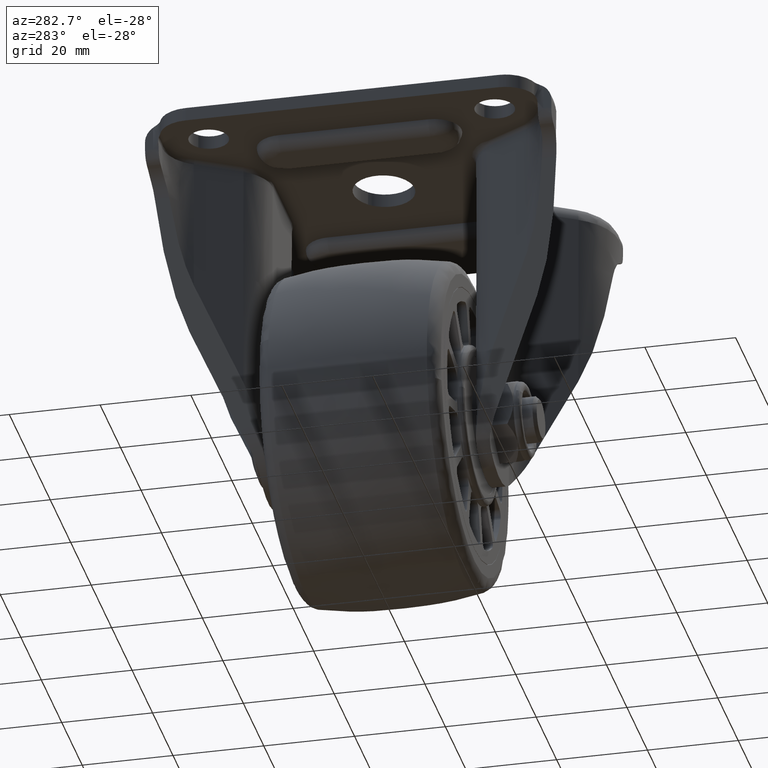
[diagram: clean part render]
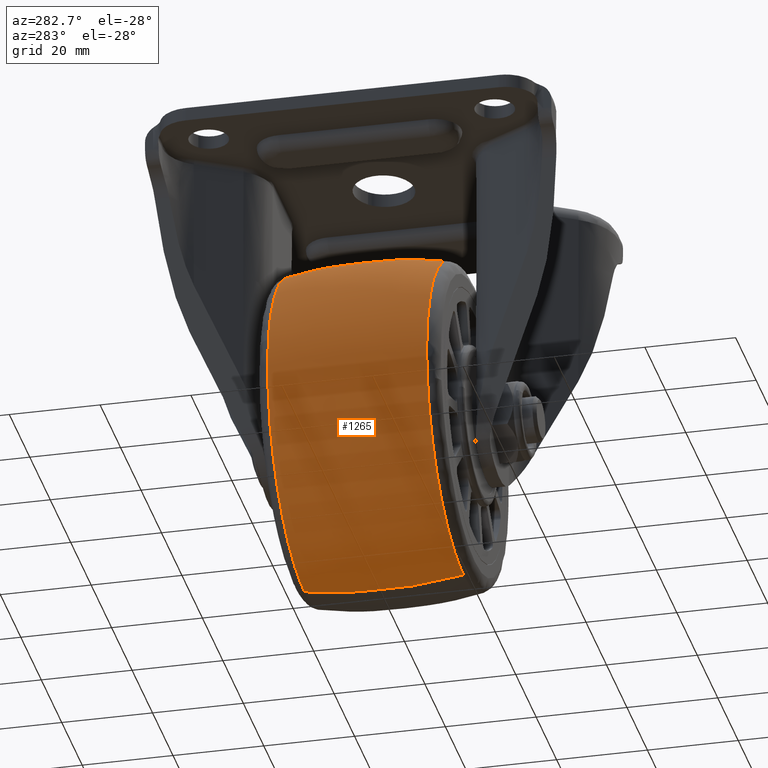
[diagram: same view with one face highlighted and labeled with its STEP entity id]
A machine part, auxiliary view. The second image highlights one B-rep face of the part: STEP entity #1265.
In plain terms, the highlighted face is a freeform B-spline surface patch.
Its self-contained STEP definition (entity closure, byte-faithful):
#1036=CARTESIAN_POINT('',(0.0,-17.525752693696369,-35.952262505840856));
#1037=VERTEX_POINT('',#1036);
#1038=CARTESIAN_POINT('',(0.0,17.525756449657170,-35.952261837232797));
#1039=VERTEX_POINT('',#1038);
#1040=CARTESIAN_POINT('',(0.0,-17.525752693696369,-35.952262505840856));
#1041=CARTESIAN_POINT('',(0.0,-13.189754936334570,-36.724298465153403));
#1042=CARTESIAN_POINT('',(0.0,-5.329556145847611,-37.592983579287420));
#1043=CARTESIAN_POINT('',(0.0,6.430607603021788,-37.495827907410941));
#1044=CARTESIAN_POINT('',(0.0,13.731751804827550,-36.627734912391702));
#1045=CARTESIAN_POINT('',(0.0,17.525756449657170,-35.952261837232797));
#1046=B_SPLINE_CURVE_WITH_KNOTS('',3,(#1040,#1041,#1042,#1043,#1044,#1045),.UNSPECIFIED.,.F.,.U.,(4,1,1,4),(1.830990E-009,13.212561840749540,23.672495145313398,35.233482441335653),.UNSPECIFIED.);
#1047=EDGE_CURVE('',#1037,#1039,#1046,.T.);
#1067=CARTESIAN_POINT('',(0.0,17.525756449584549,35.952261837245402));
#1068=VERTEX_POINT('',#1067);
#1090=CARTESIAN_POINT('',(0.0,-17.525752693607100,35.952262505856417));
#1091=VERTEX_POINT('',#1090);
#1092=CARTESIAN_POINT('',(0.0,-17.525752693607100,35.952262505856417));
#1093=CARTESIAN_POINT('',(0.0,-12.647764573311640,36.820923480301452));
#1094=CARTESIAN_POINT('',(0.0,-4.776099359513525,37.624875367106320));
#1095=CARTESIAN_POINT('',(0.0,6.978190624969670,37.430696004127370));
#1096=CARTESIAN_POINT('',(0.0,13.731753577314450,36.627742576732352));
#1097=CARTESIAN_POINT('',(0.0,17.525756449584549,35.952261837245402));
#1098=B_SPLINE_CURVE_WITH_KNOTS('',3,(#1092,#1093,#1094,#1095,#1096,#1097),.UNSPECIFIED.,.F.,.U.,(4,1,1,4),(1.829733E-009,14.864127228311149,23.672495145202490,35.233482441171212),.UNSPECIFIED.);
#1099=EDGE_CURVE('',#1091,#1068,#1098,.T.);
#1142=CARTESIAN_POINT('',(0.995907046855030,-19.283348477652371,35.623149518803096));
#1143=CARTESIAN_POINT('',(1.048377663444685,-9.733011273284991,37.499999999999822));
#1144=CARTESIAN_POINT('',(1.048377663444686,-2.842171E-014,37.499999999999837));
#1145=CARTESIAN_POINT('',(1.048377663444685,9.733016666567343,37.499999999999829));
#1146=CARTESIAN_POINT('',(0.995906989250393,19.283358962445249,35.623147458311031));
#1147=CARTESIAN_POINT('',(0.500853480080668,-19.283348477652375,35.623149518803089));
#1148=CARTESIAN_POINT('',(0.527241576242751,-9.733011273284992,37.499999999999837));
#1149=CARTESIAN_POINT('',(0.527241576242751,-2.842171E-014,37.499999999999837));
#1150=CARTESIAN_POINT('',(0.527241576242751,9.733016666567341,37.499999999999822));
#1151=CARTESIAN_POINT('',(0.500853451110612,19.283358962445245,35.623147458311031));
#1152=CARTESIAN_POINT('',(-35.623149518803274,-19.283348477652371,35.623149518803110));
#1153=CARTESIAN_POINT('',(-37.500000000000021,-9.733011273284992,37.499999999999837));
#1154=CARTESIAN_POINT('',(-37.500000000000007,-2.842171E-014,37.499999999999822));
#1155=CARTESIAN_POINT('',(-37.500000000000007,9.733016666567341,37.499999999999837));
#1156=CARTESIAN_POINT('',(-35.623147458311202,19.283358962445252,35.623147458311024));
#1157=CARTESIAN_POINT('',(-35.623149518803274,-19.283348477652371,-1.734723E-013));
#1158=CARTESIAN_POINT('',(-37.500000000000007,-9.733011273284991,-1.734723E-013));
#1159=CARTESIAN_POINT('',(-37.500000000000007,-2.842171E-014,-1.734723E-013));
#1160=CARTESIAN_POINT('',(-37.500000000000014,9.733016666567341,-1.734723E-013));
#1161=CARTESIAN_POINT('',(-35.623147458311195,19.283358962445242,-1.734723E-013));
#1162=CARTESIAN_POINT('',(-35.623149518803274,-19.283348477652371,-35.623149518803451));
#1163=CARTESIAN_POINT('',(-37.500000000000021,-9.733011273284992,-37.500000000000178));
#1164=CARTESIAN_POINT('',(-37.500000000000007,-2.842171E-014,-37.500000000000178));
#1165=CARTESIAN_POINT('',(-37.500000000000007,9.733016666567341,-37.500000000000185));
#1166=CARTESIAN_POINT('',(-35.623147458311202,19.283358962445252,-35.623147458311358));
#1167=CARTESIAN_POINT('',(0.500853480080664,-19.283348477652378,-35.623149518803444));
#1168=CARTESIAN_POINT('',(0.527241576242747,-9.733011273284991,-37.500000000000171));
#1169=CARTESIAN_POINT('',(0.527241576242747,-2.842171E-014,-37.500000000000178));
#1170=CARTESIAN_POINT('',(0.527241576242747,9.733016666567341,-37.500000000000185));
#1171=CARTESIAN_POINT('',(0.500853451110608,19.283358962445245,-35.623147458311365));
#1172=CARTESIAN_POINT('',(0.995907046855022,-19.283348477652375,-35.623149518803444));
#1173=CARTESIAN_POINT('',(1.048377663444677,-9.733011273284992,-37.500000000000178));
#1174=CARTESIAN_POINT('',(1.048377663444677,-2.842171E-014,-37.500000000000185));
#1175=CARTESIAN_POINT('',(1.048377663444677,9.733016666567341,-37.500000000000185));
#1176=CARTESIAN_POINT('',(0.995906989250386,19.283358962445238,-35.623147458311365));
#1184=(BOUNDED_SURFACE()B_SPLINE_SURFACE(2,2,((#1142,#1147,#1152,#1157,#1162,#1167,#1172),(#1143,#1148,#1153,#1158,#1163,#1168,#1173),(#1144,#1149,#1154,#1159,#1164,#1169,#1174),(#1145,#1150,#1155,#1160,#1165,#1170,#1175),(#1146,#1151,#1156,#1161,#1166,#1171,#1176)),.UNSPECIFIED.,.F.,.F.,.U.)B_SPLINE_SURFACE_WITH_KNOTS((3,2,3),(3,1,2,1,3),(0.0,19.710773435752170,39.421557556845329),(0.0,1.242640687119287,63.374675043083563,125.506709399047910,126.749350086167100),.UNSPECIFIED.)GEOMETRIC_REPRESENTATION_ITEM()RATIONAL_B_SPLINE_SURFACE(((0.977486692004199,0.971827014776063,0.683183476141090,0.966167337547926,0.683183476141090,0.971827014776062,0.977486692004199),(0.989776849061734,0.984046011456072,0.691773293567321,0.978315173850410,0.691773293567321,0.984046011456072,0.989776849061734),(1.011715728752538,1.005857864376269,0.707106781186548,1.0,0.707106781186548,1.005857864376269,1.011715728752538),(0.989776837168522,0.984045999631722,0.691773285254936,0.978315162094922,0.691773285254936,0.984045999631722,0.989776837168522),(0.977486678679051,0.971827001528067,0.683183466827898,0.966167324377083,0.683183466827898,0.971827001528067,0.977486678679051)))REPRESENTATION_ITEM('')SURFACE());
#1185=ORIENTED_EDGE('',*,*,#1047,.F.);
#1186=CARTESIAN_POINT('',(-35.397313613685199,-17.525752999167221,-6.292474641747599));
#1187=VERTEX_POINT('',#1186);
#1188=CARTESIAN_POINT('',(-35.397313613685199,-17.525752999167221,-6.292474641747599));
#1189=CARTESIAN_POINT('',(-35.043178117673563,-17.525752988906149,-8.285492460774954));
#1190=CARTESIAN_POINT('',(-34.030707293237640,-17.525752967634428,-12.084747069614430));
#1191=CARTESIAN_POINT('',(-31.767846226603670,-17.525752934857628,-17.100030712511959));
#1192=CARTESIAN_POINT('',(-28.985839987256679,-17.525752902243649,-21.457197715382929));
#1193=CARTESIAN_POINT('',(-26.230194907323821,-17.525752874499190,-24.699348776048261));
#1194=CARTESIAN_POINT('',(-23.183140152091429,-17.525752846878930,-27.564493602535890));
#1195=CARTESIAN_POINT('',(-20.060746194618680,-17.525752820939339,-29.943710245259989));
#1196=CARTESIAN_POINT('',(-16.671379939371981,-17.525752795348410,-31.922844015246419));
#1197=CARTESIAN_POINT('',(-13.341328705208390,-17.525752772011860,-33.440886907717847));
#1198=CARTESIAN_POINT('',(-10.006919431026139,-17.525752750174529,-34.602037149021150));
#1199=CARTESIAN_POINT('',(-5.484944796196207,-17.525752722769472,-35.655375587552797));
#1200=CARTESIAN_POINT('',(-2.089538260164924,-17.525752704290841,-35.952447358456787));
#1201=CARTESIAN_POINT('',(0.0,-17.525752693696369,-35.952262505840856));
#1202=B_SPLINE_CURVE_WITH_KNOTS('',3,(#1188,#1189,#1190,#1191,#1192,#1193,#1194,#1195,#1196,#1197,#1198,#1199,#1200,#1201),.UNSPECIFIED.,.F.,.U.,(4,1,1,1,1,1,1,1,1,1,1,4),(0.000000045486857,6.072689979072507,11.753596539200521,16.455053852271771,21.548266639993461,24.486690193135050,28.992181535253909,33.301864472198318,36.240259365837382,39.962239411497151,43.880110889641820,50.148690329796914),.UNSPECIFIED.);
#1203=EDGE_CURVE('',#1187,#1037,#1202,.T.);
#1204=ORIENTED_EDGE('',*,*,#1203,.F.);
#1205=CARTESIAN_POINT('',(0.0,-17.525752693607100,35.952262505856417));
#1206=CARTESIAN_POINT('',(-1.880688085920540,-17.525752700302011,35.952387868771829));
#1207=CARTESIAN_POINT('',(-4.742560689218985,-17.525752711447829,35.727161745875833));
#1208=CARTESIAN_POINT('',(-8.834842307808733,-17.525752729504010,34.906654402521831));
#1209=CARTESIAN_POINT('',(-12.205702150523940,-17.525752745832659,33.888295607881261));
#1210=CARTESIAN_POINT('',(-15.826833096460520,-17.525752765215771,32.360913496562759));
#1211=CARTESIAN_POINT('',(-18.903510930190659,-17.525752783454521,30.646700291147031));
#1212=CARTESIAN_POINT('',(-22.069267542411851,-17.525752804006000,28.462967776753700));
#1213=CARTESIAN_POINT('',(-24.937066579371521,-17.525752824611249,26.016924055041262));
#1214=CARTESIAN_POINT('',(-28.324598850272839,-17.525752852274621,22.345635352017219));
#1215=CARTESIAN_POINT('',(-31.067013851824420,-17.525752879004511,18.353501699074450));
#1216=CARTESIAN_POINT('',(-33.191468796333560,-17.525752905015182,14.012982849753501));
#1217=CARTESIAN_POINT('',(-34.759790042655858,-17.525752929284121,9.616532153929974));
#1218=CARTESIAN_POINT('',(-35.818000014069938,-17.525752954552651,4.557249492137152));
#1219=CARTESIAN_POINT('',(-36.073341762619712,-17.525752979142428,-1.014349961546141));
#1220=CARTESIAN_POINT('',(-35.697915223852434,-17.525752993051668,-4.601845818147259));
#1221=CARTESIAN_POINT('',(-35.397313613685199,-17.525752999167221,-6.292474641747599));
#1222=B_SPLINE_CURVE_WITH_KNOTS('',3,(#1205,#1206,#1207,#1208,#1209,#1210,#1211,#1212,#1213,#1214,#1215,#1216,#1217,#1218,#1219,#1220,#1221),.UNSPECIFIED.,.F.,.U.,(4,1,1,1,1,1,1,1,1,1,1,1,1,1,4),(0.000000031750346,5.642047328457011,8.585766369858746,12.510699411708590,16.190332023582620,20.360575754047140,23.058974590936248,27.719817548689079,31.644720370159121,38.022711717425310,42.192967359496862,46.117907564473029,52.005313219203693,57.647410513897682,62.798853704680290),.UNSPECIFIED.);
#1223=EDGE_CURVE('',#1091,#1187,#1222,.T.);
#1224=ORIENTED_EDGE('',*,*,#1223,.F.);
#1225=ORIENTED_EDGE('',*,*,#1099,.T.);
#1226=CARTESIAN_POINT('',(-35.228008220120870,17.525756642051270,7.180004365635131));
#1227=VERTEX_POINT('',#1226);
#1228=CARTESIAN_POINT('',(0.0,17.525756449584549,35.952261837245402));
#1229=CARTESIAN_POINT('',(-1.667146766004773,17.525756455047279,35.952320154246209));
#1230=CARTESIAN_POINT('',(-5.257931955439227,17.525756467483390,35.702114281023000));
#1231=CARTESIAN_POINT('',(-10.029687092036781,17.525756485967651,34.638268892986439));
#1232=CARTESIAN_POINT('',(-14.186957716954129,17.525756503693021,33.105797341920997));
#1233=CARTESIAN_POINT('',(-17.412681131819419,17.525756518514680,31.517769244549971));
#1234=CARTESIAN_POINT('',(-20.906761809758041,17.525756535747892,29.357421297995010));
#1235=CARTESIAN_POINT('',(-24.121690139696820,17.525756553160420,26.788468014284490));
#1236=CARTESIAN_POINT('',(-27.387418394850670,17.525756572862289,23.426603633744509));
#1237=CARTESIAN_POINT('',(-29.683989208900339,17.525756588467221,20.408759521026440));
#1238=CARTESIAN_POINT('',(-31.708073966856620,17.525756604069478,17.058588460507089));
#1239=CARTESIAN_POINT('',(-33.690943162819160,17.525756621558930,12.952493789622009));
#1240=CARTESIAN_POINT('',(-34.767308948797250,17.525756634487220,9.441947132716143));
#1241=CARTESIAN_POINT('',(-35.228008220120870,17.525756642051270,7.180004365635131));
#1242=B_SPLINE_CURVE_WITH_KNOTS('',3,(#1228,#1229,#1230,#1231,#1232,#1233,#1234,#1235,#1236,#1237,#1238,#1239,#1240,#1241),.UNSPECIFIED.,.F.,.U.,(4,1,1,1,1,1,1,1,1,1,1,4),(0.000000043304446,5.001445366413329,10.772371893330350,14.619649121918130,18.274580939382499,21.544776755348050,26.930894400071871,30.585838266719069,35.587297975707969,38.280395224085687,42.320052357867553,49.245128781885057),.UNSPECIFIED.);
#1243=EDGE_CURVE('',#1068,#1227,#1242,.T.);
#1244=ORIENTED_EDGE('',*,*,#1243,.T.);
#1245=CARTESIAN_POINT('',(-35.228008220120870,17.525756642051270,7.180004365635131));
#1246=CARTESIAN_POINT('',(-35.741959122616137,17.525756636434391,4.660532756325490));
#1247=CARTESIAN_POINT('',(-36.131813802098087,17.525756626176388,0.507660728316021));
#1248=CARTESIAN_POINT('',(-35.644773737965011,17.525756608707169,-5.624318908128589));
#1249=CARTESIAN_POINT('',(-34.402932617880197,17.525756591676650,-10.975452403665720));
#1250=CARTESIAN_POINT('',(-32.406336668627063,17.525756574345351,-15.822493992389200));
#1251=CARTESIAN_POINT('',(-30.030178887461290,17.525756558193979,-19.918289327962839));
#1252=CARTESIAN_POINT('',(-27.487693946640480,17.525756543564210,-23.309446298854159));
#1253=CARTESIAN_POINT('',(-24.094643233221351,17.525756526681459,-26.847752474135479));
#1254=CARTESIAN_POINT('',(-20.425263375366399,17.525756510971920,-29.721847850362568));
#1255=CARTESIAN_POINT('',(-16.195787519380140,17.525756495105160,-32.196880323226239));
#1256=CARTESIAN_POINT('',(-11.693669668881959,17.525756480052792,-34.145033449400543));
#1257=CARTESIAN_POINT('',(-6.137923741962772,17.525756464016840,-35.599701313730208));
#1258=CARTESIAN_POINT('',(-2.073639236105761,17.525756454189349,-35.952407079401802));
#1259=CARTESIAN_POINT('',(0.0,17.525756449657170,-35.952261837232797));
#1260=B_SPLINE_CURVE_WITH_KNOTS('',3,(#1245,#1246,#1247,#1248,#1249,#1250,#1251,#1252,#1253,#1254,#1255,#1256,#1257,#1258,#1259),.UNSPECIFIED.,.F.,.U.,(4,1,1,1,1,1,1,1,1,1,1,1,4),(0.000000024003931,7.713962290179438,12.441872800892160,18.413988795078350,24.137273274838950,28.118650060705740,32.597687502974452,36.827919900978777,42.800052119416812,46.532620501641560,51.509386609605251,57.481509119991237,63.702415826116713),.UNSPECIFIED.);
#1261=EDGE_CURVE('',#1227,#1039,#1260,.T.);
#1262=ORIENTED_EDGE('',*,*,#1261,.T.);
#1263=EDGE_LOOP('',(#1185,#1204,#1224,#1225,#1244,#1262));
#1264=FACE_OUTER_BOUND('',#1263,.T.);
#1265=ADVANCED_FACE('',(#1264),#1184,.T.);